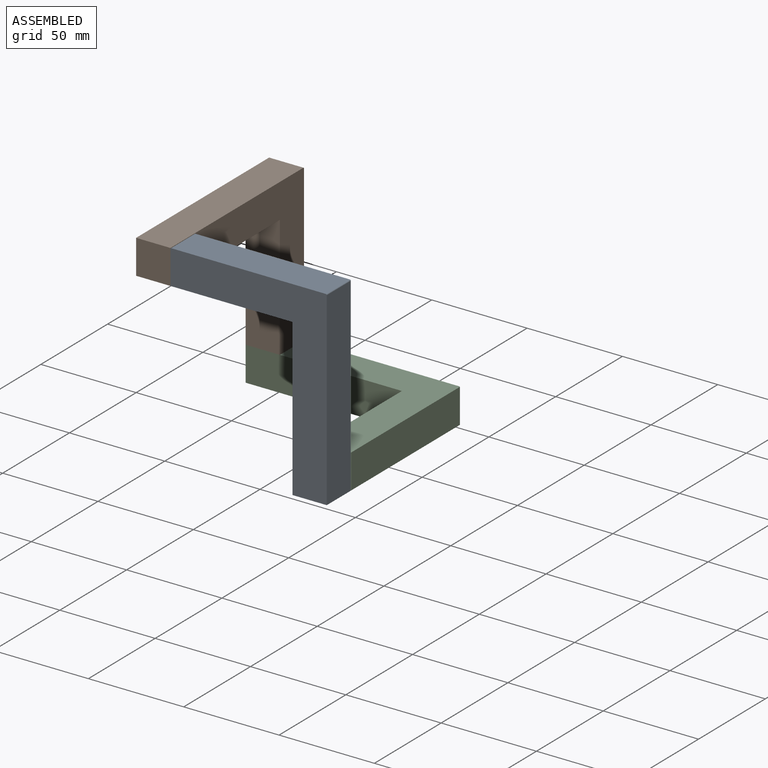
[diagram: assembled view]
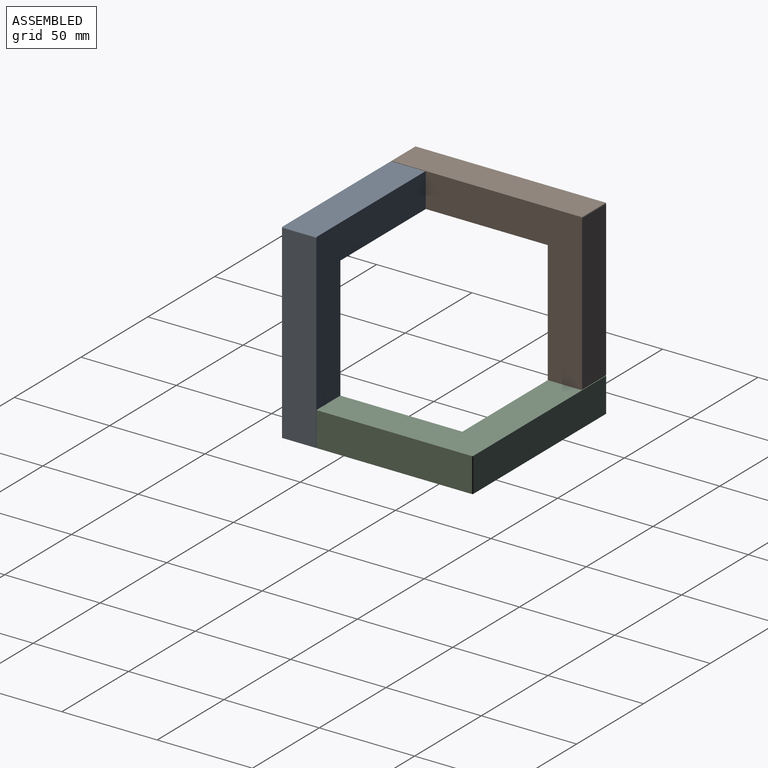
[diagram: assembled view, second angle]
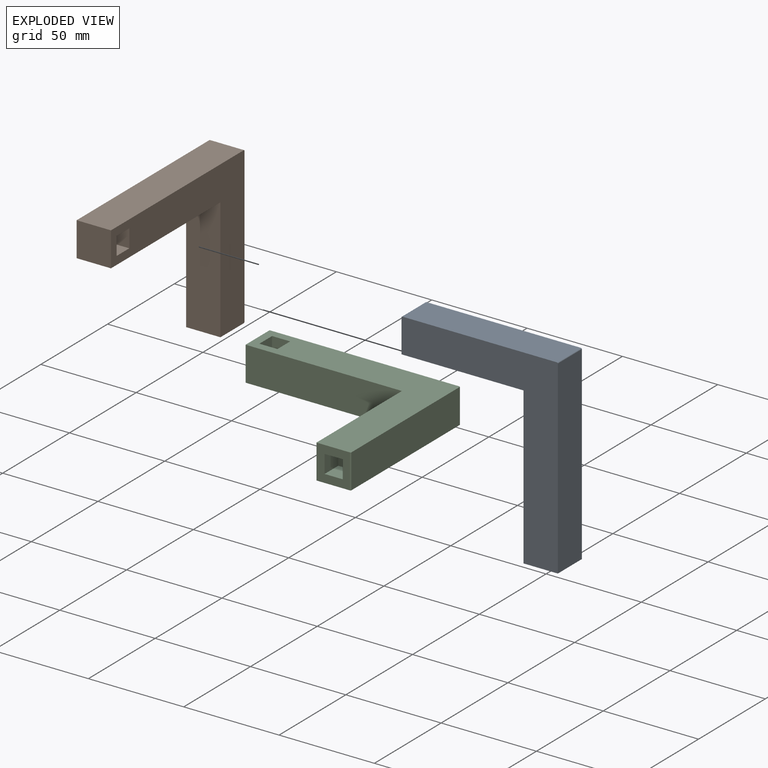
[diagram: exploded view]
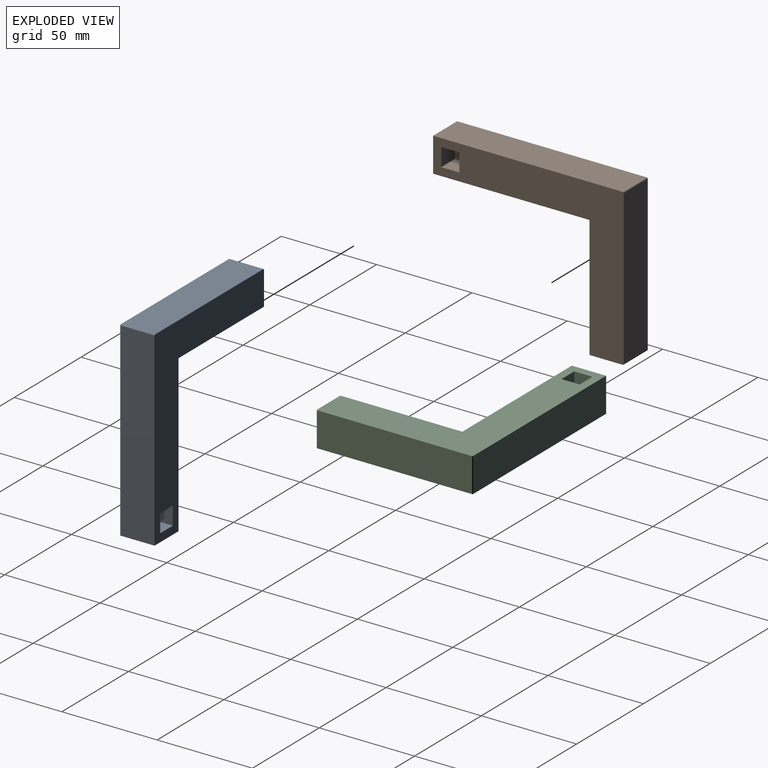
[diagram: exploded view, second angle]
ASSEMBLY  parts=3 mates=2
PART A: 20 faces, bbox 82x100x18 mm
  f0: plane 18x17.5mm, normal (-1,0,0), area 224.7mm2, adj f1,f2,f7,f13,f14,f15,f16,f18
  f1: plane 100x82mm, normal (0,0,1), area 2861.6mm2, adj f0,f2,f3,f4,f5,f6,f8,f9
  f2: plane 64x18mm, normal (0,1,0), area 1152mm2, adj f0,f1,f6,f7
  f3: plane 81x18mm, normal (0,-1,0), area 1458mm2, adj f1,f7,f18,f19
  f4: plane 99.5x18mm, normal (1,0,0), area 1791mm2, adj f1,f5,f7,f19
  f5: plane 18x18mm, normal (0,1,0), area 324mm2, adj f1,f4,f6,f7
  f6: plane 82x18mm, normal (-1,0,0), area 1476mm2, adj f1,f2,f5,f7
  f7: plane 100x82mm, normal (0,0,-1), area 2951.9mm2, adj f0,f2,f3,f4,f5,f6,f18,f19
  f8: plane 10.25x9.5mm, normal (-1,0,0), area 97.4mm2, adj f1,f9,f11,f12
  f9: plane 10.25x9.5mm, normal (0,-1,0), area 97.4mm2, adj f1,f8,f10,f12
  f10: plane 10.25x9.5mm, normal (1,0,0), area 97.4mm2, adj f1,f9,f11,f12
  f11: plane 10.25x9.5mm, normal (0,1,0), area 97.4mm2, adj f1,f8,f10,f12
  f12: plane 9.5x9.5mm, normal (0,0,1), area 90.2mm2, adj f8,f9,f10,f11
  f13: plane 10.25x9.5mm, normal (0,1,0), area 97.4mm2, adj f0,f14,f16,f17
  f14: plane 10.25x9.5mm, normal (0,0,-1), area 97.4mm2, adj f0,f13,f15,f17
  f15: plane 10.25x9.5mm, normal (0,-1,0), area 97.4mm2, adj f0,f14,f16,f17
  f16: plane 10.25x9.5mm, normal (0,0,1), area 97.4mm2, adj f0,f13,f15,f17
  f17: plane 9.5x9.5mm, normal (-1,0,0), area 90.2mm2, adj f13,f14,f15,f16
  f18: cylinder r=0.5mm len=18mm, axis (0,0,-1), area 14.1mm2, adj f0,f1,f3,f7
  f19: cylinder r=0.5mm len=18mm, axis (0,0,-1), area 14.1mm2, adj f1,f3,f4,f7
PART B: same geometry as A
PART C: same geometry as A
PLACE A rot(axis=(-1,0,0),90deg) t=(49.92,-38.01,154.77)mm
PLACE B rot(axis=(-0.71,0,-0.71),180deg) t=(-23.08,34.99,154.77)mm
PLACE C rot(axis=(0,0,1),90deg) t=(49.92,34.99,81.77)mm
MATE fastened B.f1 <-> A.f0  axis (1,0,0) through (-14.08,-33.26,163.77)mm
MATE fastened C.f1 <-> B.f0  axis (0,0,1) through (-18.33,43.99,90.77)mm
